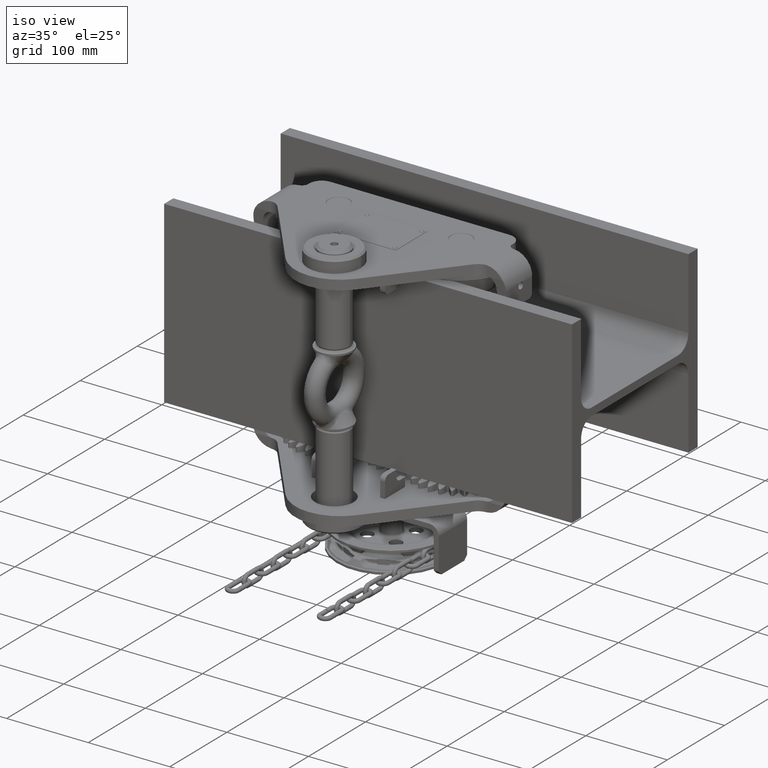
[diagram: clean part render]
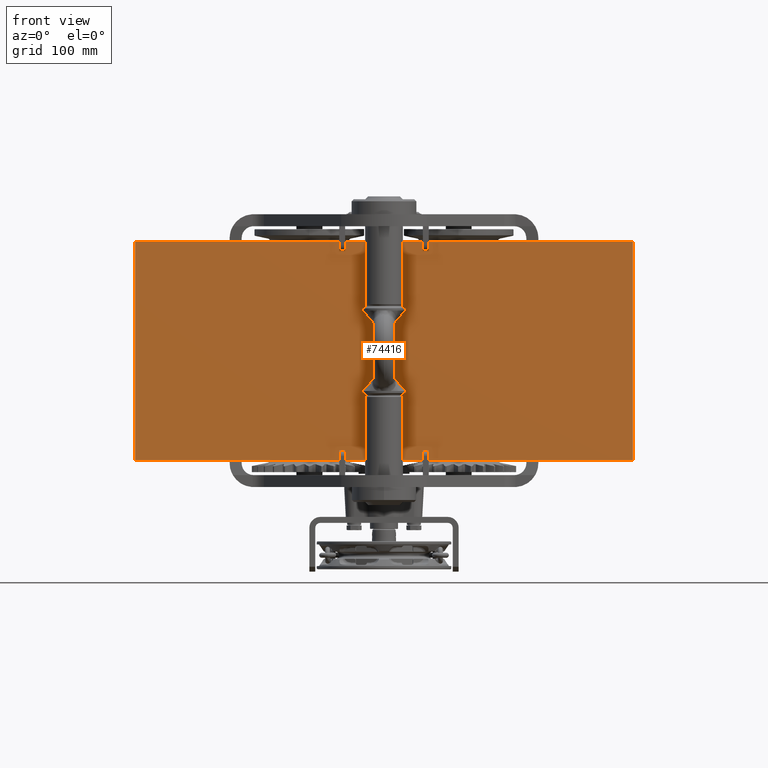
[diagram: tour spotlight — one face highlighted and labeled with its STEP entity id]
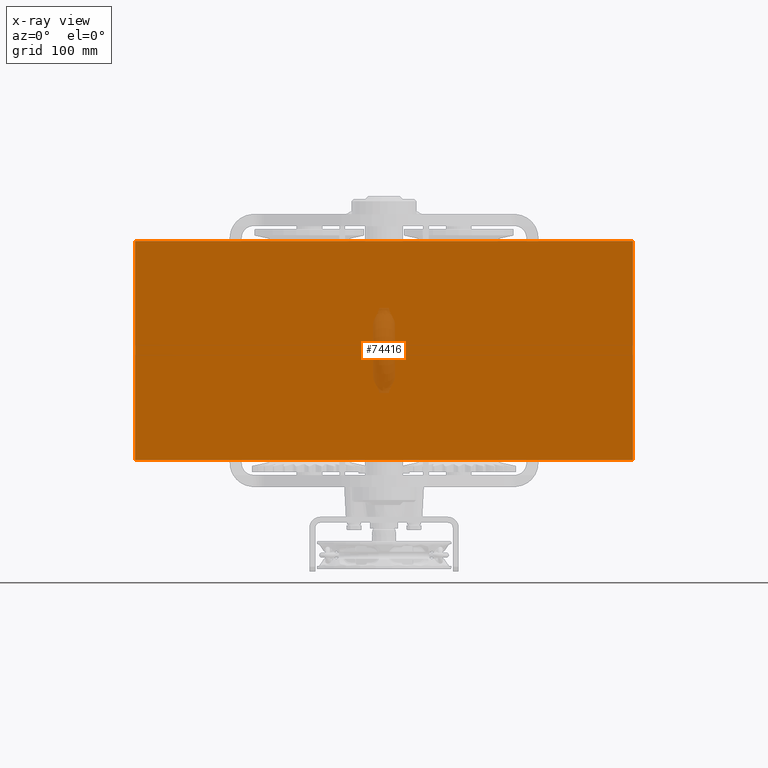
[diagram: x-ray of the same camera — body ghosted, this tour face saturated]
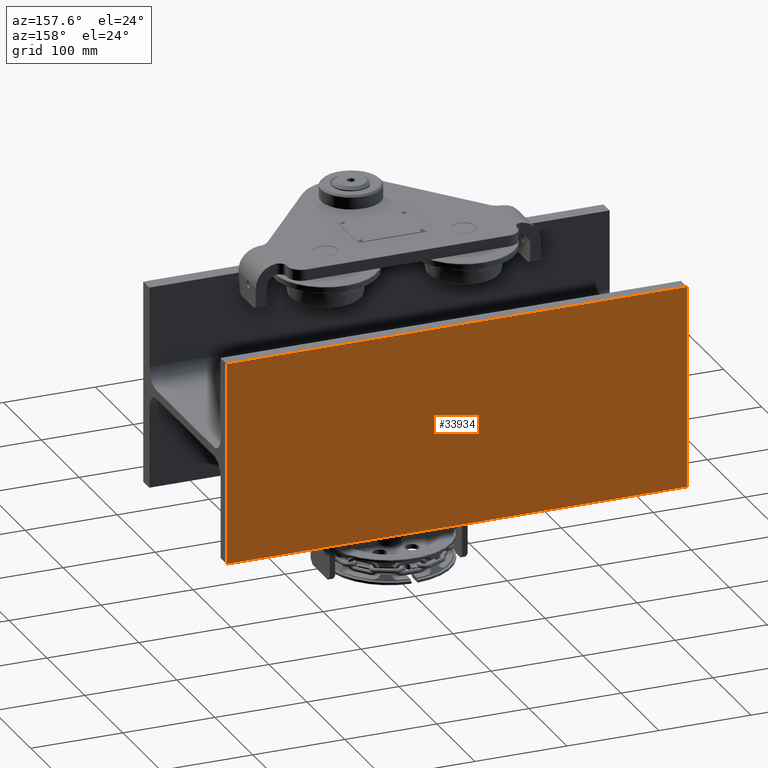
[diagram: tour spotlight — one face highlighted and labeled with its STEP entity id]
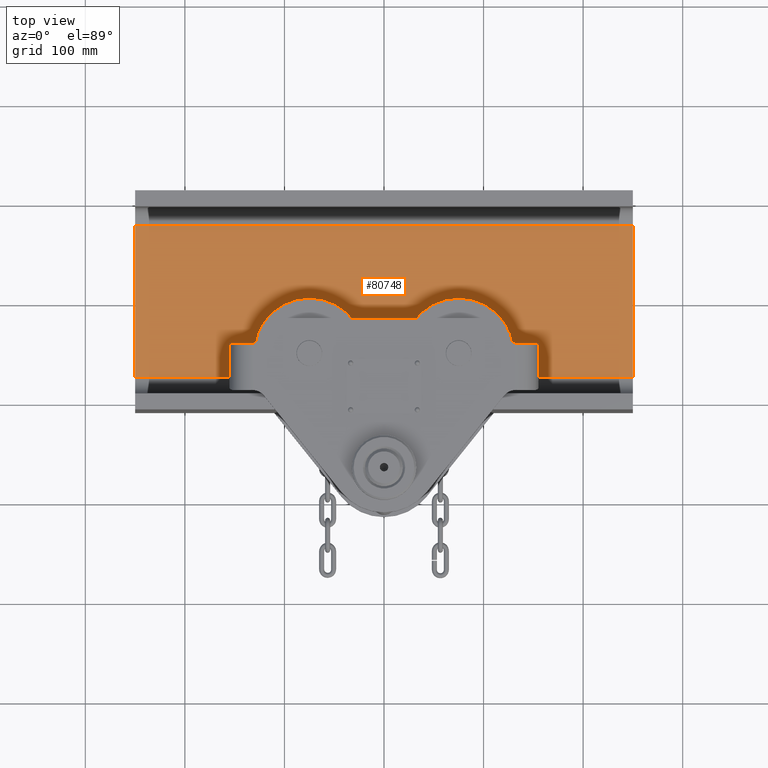
[diagram: tour spotlight — one face highlighted and labeled with its STEP entity id]
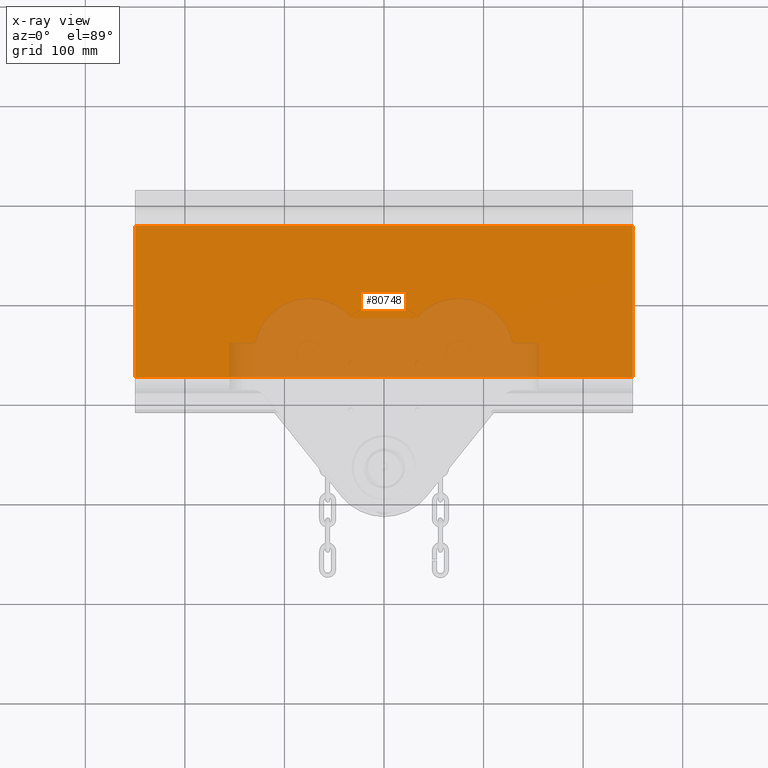
[diagram: x-ray of the same camera — body ghosted, this tour face saturated]
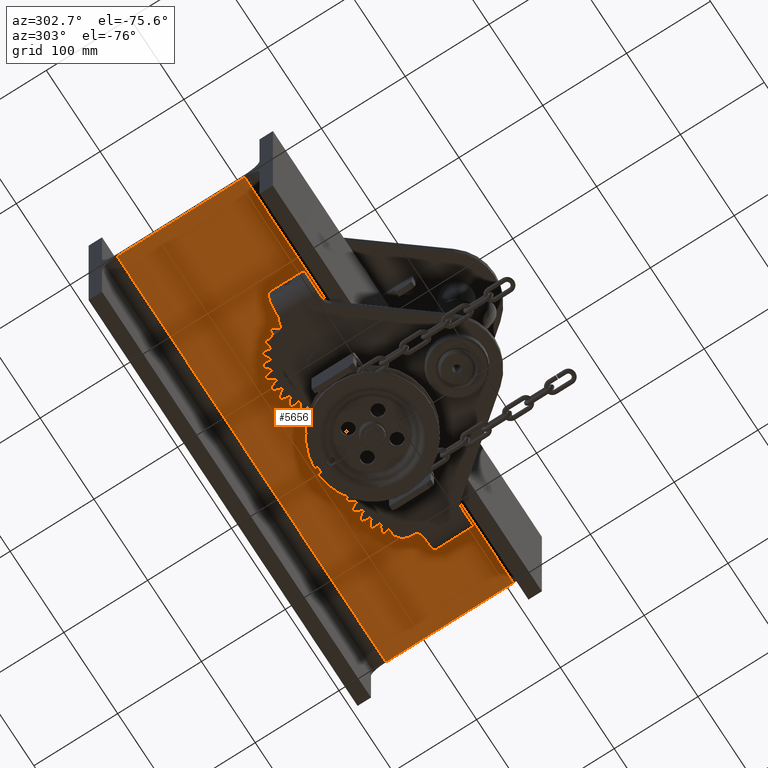
[diagram: tour spotlight — one face highlighted and labeled with its STEP entity id]
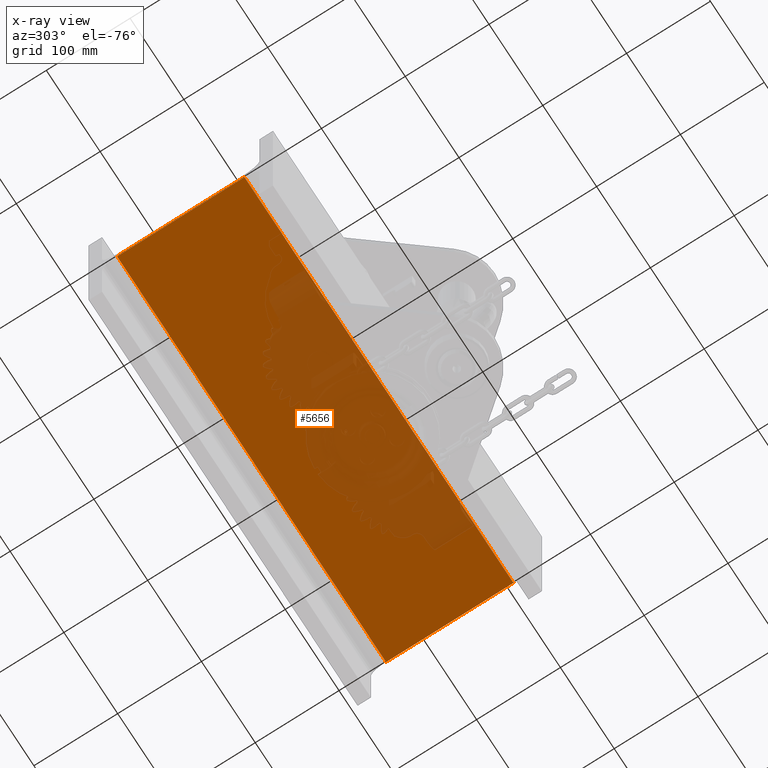
[diagram: x-ray of the same camera — body ghosted, this tour face saturated]
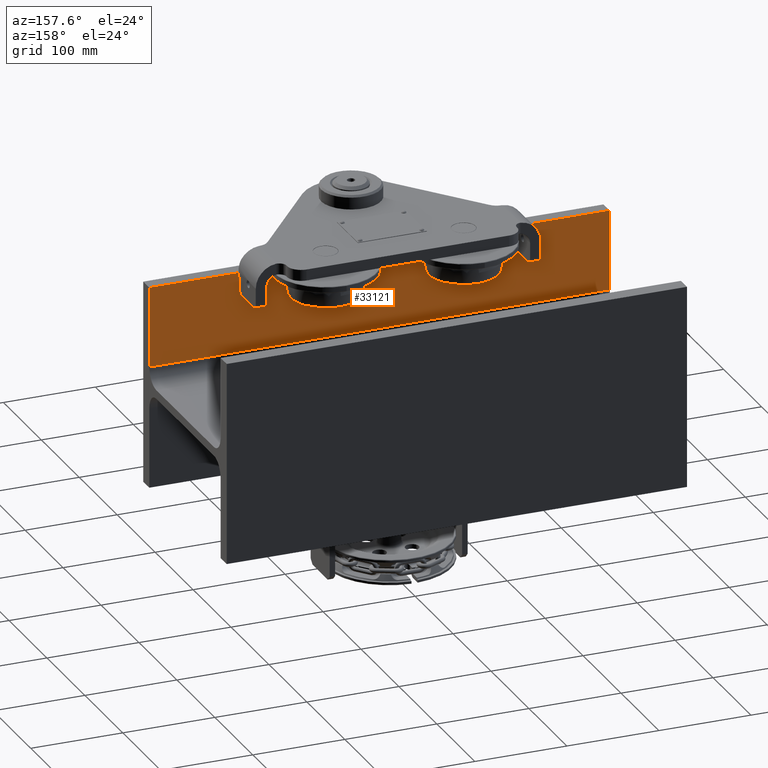
[diagram: tour spotlight — one face highlighted and labeled with its STEP entity id]
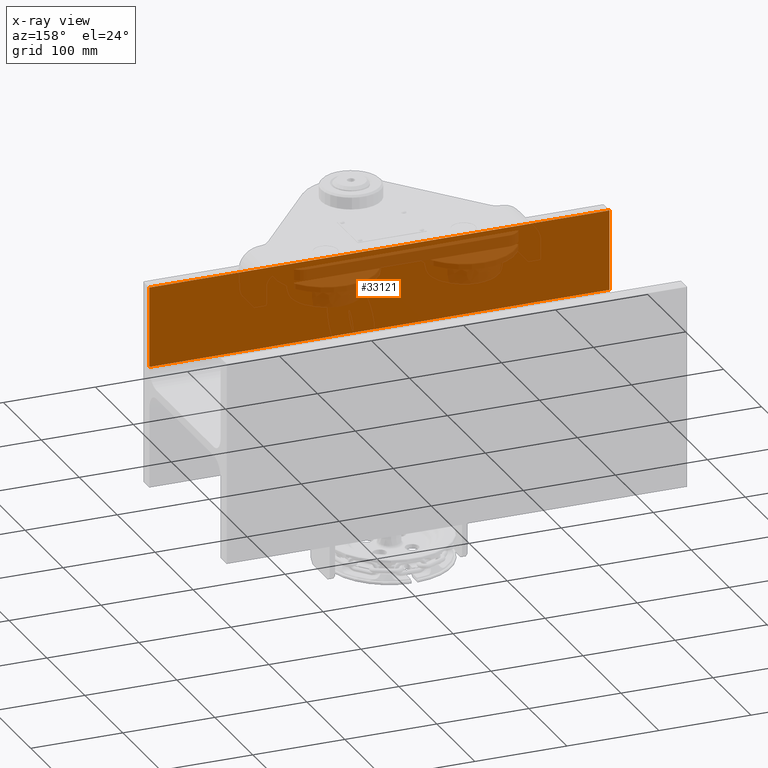
[diagram: x-ray of the same camera — body ghosted, this tour face saturated]
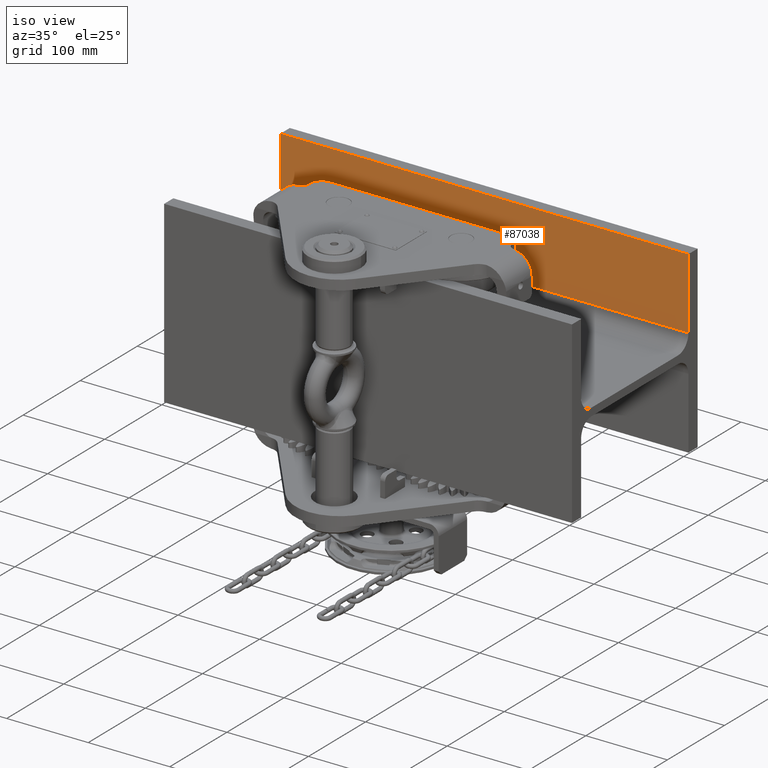
[diagram: tour spotlight — one face highlighted and labeled with its STEP entity id]
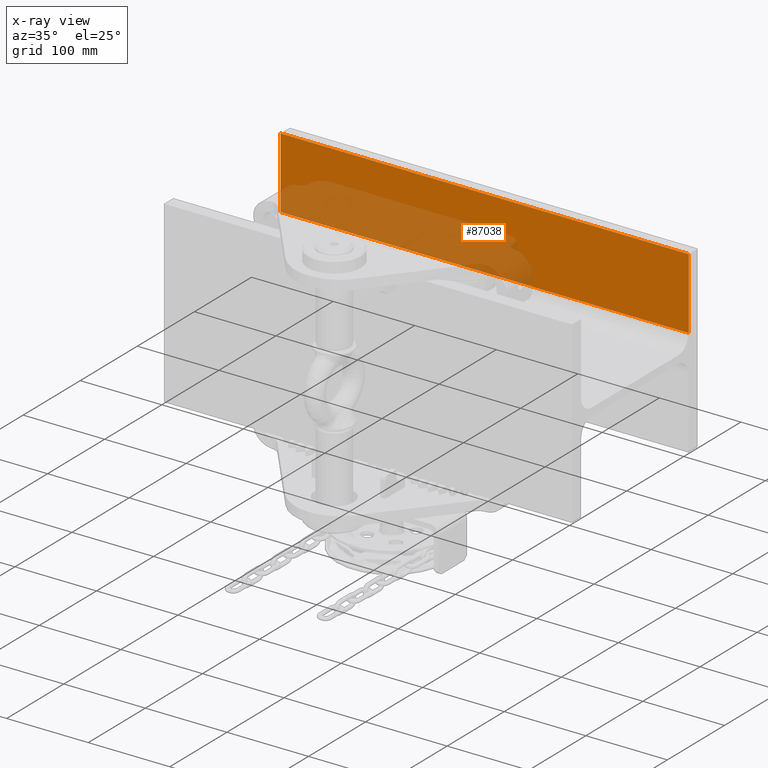
[diagram: x-ray of the same camera — body ghosted, this tour face saturated]
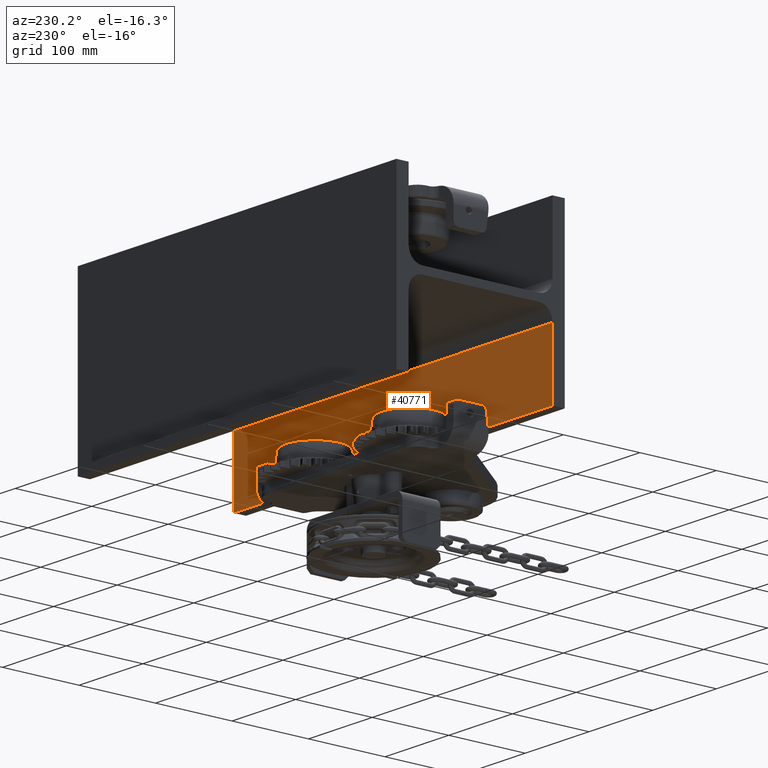
[diagram: tour spotlight — one face highlighted and labeled with its STEP entity id]
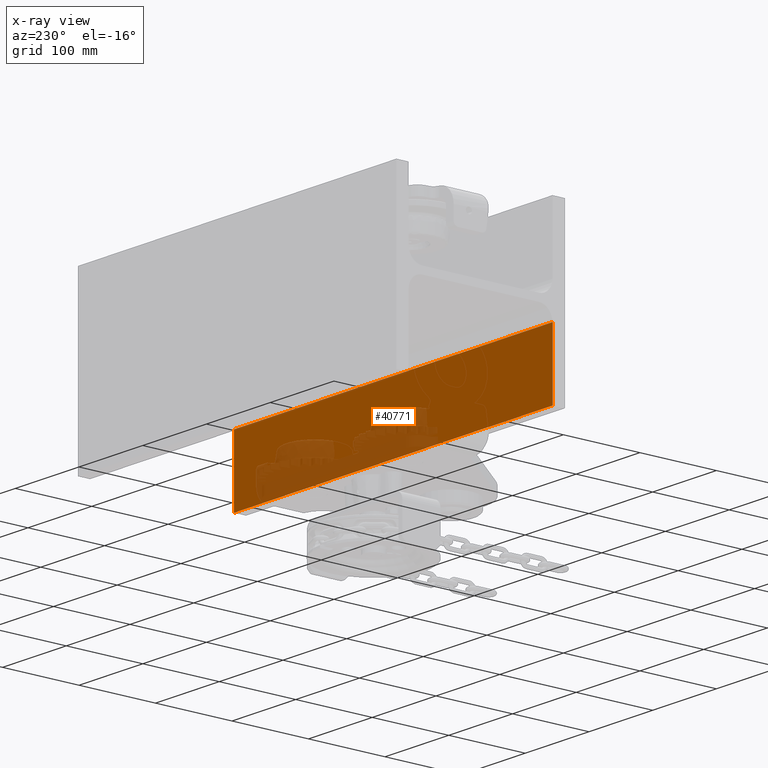
[diagram: x-ray of the same camera — body ghosted, this tour face saturated]
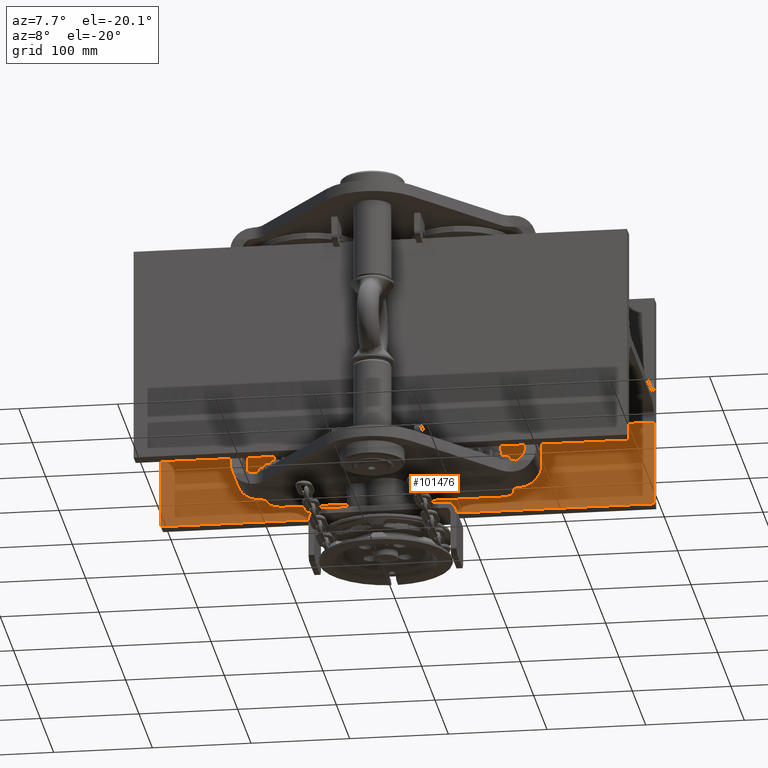
[diagram: tour spotlight — one face highlighted and labeled with its STEP entity id]
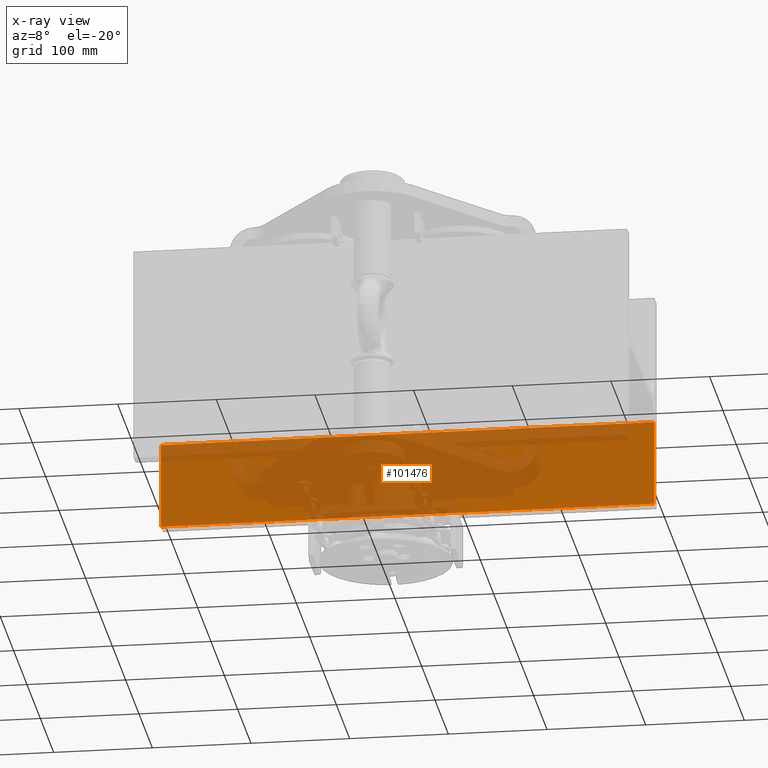
[diagram: x-ray of the same camera — body ghosted, this tour face saturated]
A machine part: a face-by-face anatomy tour. The part has 2111 B-rep faces; the first image is the clean iso view, then the 8 largest visible faces are spotlighted one at a time (largest first), each with its STEP entity span.

Face 1 — front view, entity #74416. An x-ray twin of the same camera follows (body ghosted, this face saturated) — the face is partly hidden behind the body. In plain terms, the highlighted planar face has unit normal (0, -1, -0).
Definition (entity closure, byte-faithful):
#3419 = EDGE_CURVE ( 'NONE', #32816, #4416, #94757, .T. ) ;
#3979 = ORIENTED_EDGE ( 'NONE', *, *, #39376, .F. ) ;
#4416 = VERTEX_POINT ( 'NONE', #8699 ) ;
#5676 = CARTESIAN_POINT ( 'NONE',  ( -250.0000000000000600, -110.0000000000000300, 109.9999999999999300 ) ) ;
#6373 = VECTOR ( 'NONE', #103443, 1000.000000000000000 ) ;
#8208 = VECTOR ( 'NONE', #64261, 1000.000000000000000 ) ;
#8699 = CARTESIAN_POINT ( 'NONE',  ( 250.0000000000000600, -110.0000000000000300, 109.9999999999999300 ) ) ;
#9931 = VECTOR ( 'NONE', #10548, 1000.000000000000000 ) ;
#10548 = DIRECTION ( 'NONE',  ( 1.925929944387235900E-034, 4.554710308673295900E-016, -1.000000000000000000 ) ) ;
#12864 = LINE ( 'NONE', #33943, #31299 ) ;
#13682 = VERTEX_POINT ( 'NONE', #69792 ) ;
#17560 = AXIS2_PLACEMENT_3D ( 'NONE', #86522, #20120, #102956 ) ;
#17988 = ORIENTED_EDGE ( 'NONE', *, *, #84872, .T. ) ;
#20120 = DIRECTION ( 'NONE',  ( 7.945217245539497500E-050, -1.000000000000000000, -4.554710308673295900E-016 ) ) ;
#27888 = ORIENTED_EDGE ( 'NONE', *, *, #104200, .T. ) ;
#28652 = LINE ( 'NONE', #37174, #6373 ) ;
#31299 = VECTOR ( 'NONE', #57488, 1000.000000000000000 ) ;
#32816 = VERTEX_POINT ( 'NONE', #5676 ) ;
#33943 = CARTESIAN_POINT ( 'NONE',  ( -250.0000000000000600, -109.9999999999999300, -110.0000000000000700 ) ) ;
#36612 = CARTESIAN_POINT ( 'NONE',  ( -250.0000000000000600, -110.0000000000000300, 109.9999999999999300 ) ) ;
#37174 = CARTESIAN_POINT ( 'NONE',  ( 250.0000000000000600, -110.0000000000000300, 109.9999999999999300 ) ) ;
#39376 = EDGE_CURVE ( 'NONE', #4416, #13682, #28652, .T. ) ;
#54347 = CARTESIAN_POINT ( 'NONE',  ( -250.0000000000000600, -109.9999999999999300, -110.0000000000000700 ) ) ;
#55752 = CARTESIAN_POINT ( 'NONE',  ( -250.0000000000000600, -110.0000000000000300, 109.9999999999999300 ) ) ;
#57488 = DIRECTION ( 'NONE',  ( 1.000000000000000000, 0.0000000000000000000, 7.703719777548941700E-034 ) ) ;
#64261 = DIRECTION ( 'NONE',  ( 1.000000000000000000, 0.0000000000000000000, 7.703719777548941700E-034 ) ) ;
#69792 = CARTESIAN_POINT ( 'NONE',  ( 250.0000000000000600, -109.9999999999999300, -110.0000000000000700 ) ) ;
#70478 = PLANE ( 'NONE',  #17560 ) ;
#72142 = FACE_OUTER_BOUND ( 'NONE', #102442, .T. ) ;
#73391 = ORIENTED_EDGE ( 'NONE', *, *, #3419, .F. ) ;
#74416 = ADVANCED_FACE ( 'NONE', ( #72142 ), #70478, .T. ) ;
#84872 = EDGE_CURVE ( 'NONE', #87927, #13682, #12864, .T. ) ;
#86522 = CARTESIAN_POINT ( 'NONE',  ( -250.0000000000000600, -110.0000000000000300, 109.9999999999999300 ) ) ;
#87927 = VERTEX_POINT ( 'NONE', #54347 ) ;
#94757 = LINE ( 'NONE', #55752, #8208 ) ;
#100437 = LINE ( 'NONE', #36612, #9931 ) ;
#102442 = EDGE_LOOP ( 'NONE', ( #3979, #73391, #27888, #17988 ) ) ;
#102956 = DIRECTION ( 'NONE',  ( 1.925929944387235900E-034, 4.554710308673295900E-016, -1.000000000000000000 ) ) ;
#103443 = DIRECTION ( 'NONE',  ( 1.925929944387235900E-034, 4.554710308673295900E-016, -1.000000000000000000 ) ) ;
#104200 = EDGE_CURVE ( 'NONE', #32816, #87927, #100437, .T. ) ;

Face 2 — auxiliary view, entity #33934. In plain terms, the highlighted planar face has unit normal (-0, 1, 0).
Definition (entity closure, byte-faithful):
#1237 = LINE ( 'NONE', #79474, #87738 ) ;
#5110 = CARTESIAN_POINT ( 'NONE',  ( -250.0000000000000600, 110.0000000000000400, -110.0000000000000100 ) ) ;
#6190 = LINE ( 'NONE', #29077, #91397 ) ;
#8406 = EDGE_CURVE ( 'NONE', #17644, #76088, #17684, .T. ) ;
#10776 = EDGE_LOOP ( 'NONE', ( #64185, #52254, #77668, #56205 ) ) ;
#11507 = VECTOR ( 'NONE', #40025, 1000.000000000000000 ) ;
#13368 = CARTESIAN_POINT ( 'NONE',  ( 250.0000000000000600, 110.0000000000000400, -110.0000000000000100 ) ) ;
#17644 = VERTEX_POINT ( 'NONE', #13368 ) ;
#17684 = LINE ( 'NONE', #82148, #104229 ) ;
#23062 = DIRECTION ( 'NONE',  ( 1.000000000000000000, 0.0000000000000000000, 7.703719777548941700E-034 ) ) ;
#29077 = CARTESIAN_POINT ( 'NONE',  ( -250.0000000000000600, 110.0000000000000400, 110.0000000000000000 ) ) ;
#31162 = DIRECTION ( 'NONE',  ( -3.307342903774534100E-050, 1.000000000000000000, 4.293176542341493300E-017 ) ) ;
#33934 = ADVANCED_FACE ( 'NONE', ( #45521 ), #96392, .T. ) ;
#40025 = DIRECTION ( 'NONE',  ( -1.925929944387235900E-034, -4.293176542341593100E-017, 1.000000000000000000 ) ) ;
#40639 = EDGE_CURVE ( 'NONE', #88268, #76088, #6190, .T. ) ;
#44855 = DIRECTION ( 'NONE',  ( 1.000000000000000000, 0.0000000000000000000, 7.703719777548941700E-034 ) ) ;
#45521 = FACE_OUTER_BOUND ( 'NONE', #10776, .T. ) ;
#47639 = DIRECTION ( 'NONE',  ( -1.925929944387235900E-034, -4.293176542341593100E-017, 1.000000000000000000 ) ) ;
#51568 = CARTESIAN_POINT ( 'NONE',  ( -250.0000000000000600, 110.0000000000000400, 110.0000000000000000 ) ) ;
#52254 = ORIENTED_EDGE ( 'NONE', *, *, #60131, .F. ) ;
#56112 = CARTESIAN_POINT ( 'NONE',  ( -250.0000000000000600, 110.0000000000000400, -110.0000000000000100 ) ) ;
#56205 = ORIENTED_EDGE ( 'NONE', *, *, #40639, .T. ) ;
#60131 = EDGE_CURVE ( 'NONE', #65452, #17644, #1237, .T. ) ;
#64185 = ORIENTED_EDGE ( 'NONE', *, *, #8406, .F. ) ;
#64527 = CARTESIAN_POINT ( 'NONE',  ( 250.0000000000000600, 110.0000000000000400, 110.0000000000000000 ) ) ;
#65452 = VERTEX_POINT ( 'NONE', #5110 ) ;
#73487 = CARTESIAN_POINT ( 'NONE',  ( -250.0000000000000600, 110.0000000000000400, -110.0000000000000100 ) ) ;
#76088 = VERTEX_POINT ( 'NONE', #64527 ) ;
#77668 = ORIENTED_EDGE ( 'NONE', *, *, #98287, .T. ) ;
#78145 = AXIS2_PLACEMENT_3D ( 'NONE', #56112, #31162, #23062 ) ;
#79474 = CARTESIAN_POINT ( 'NONE',  ( -250.0000000000000600, 110.0000000000000400, -110.0000000000000100 ) ) ;
#82148 = CARTESIAN_POINT ( 'NONE',  ( 250.0000000000000600, 110.0000000000000400, -110.0000000000000100 ) ) ;
#87738 = VECTOR ( 'NONE', #104692, 1000.000000000000000 ) ;
#88268 = VERTEX_POINT ( 'NONE', #51568 ) ;
#91397 = VECTOR ( 'NONE', #44855, 1000.000000000000000 ) ;
#96392 = PLANE ( 'NONE',  #78145 ) ;
#96702 = LINE ( 'NONE', #73487, #11507 ) ;
#98287 = EDGE_CURVE ( 'NONE', #65452, #88268, #96702, .T. ) ;
#104229 = VECTOR ( 'NONE', #47639, 1000.000000000000000 ) ;
#104692 = DIRECTION ( 'NONE',  ( 1.000000000000000000, 0.0000000000000000000, 7.703719777548941700E-034 ) ) ;

Face 3 — top view, entity #80748. An x-ray twin of the same camera follows (body ghosted, this face saturated) — the face is partly hidden behind the body. In plain terms, the highlighted planar face has unit normal (0, 0, -1).
Definition (entity closure, byte-faithful):
#789 = LINE ( 'NONE', #80698, #61194 ) ;
#1568 = EDGE_LOOP ( 'NONE', ( #17333, #53303, #68453, #14514 ) ) ;
#2898 = CARTESIAN_POINT ( 'NONE',  ( -250.0000000000000600, -75.99999999999973000, 4.749999999999992000 ) ) ;
#2938 = FACE_OUTER_BOUND ( 'NONE', #1568, .T. ) ;
#3963 = DIRECTION ( 'NONE',  ( 1.000000000000000000, 0.0000000000000000000, 7.703719777548941700E-034 ) ) ;
#4971 = VERTEX_POINT ( 'NONE', #70269 ) ;
#14514 = ORIENTED_EDGE ( 'NONE', *, *, #43515, .T. ) ;
#15247 = DIRECTION ( 'NONE',  ( 7.703719777548941700E-034, 4.293176542341593700E-017, -1.000000000000000000 ) ) ;
#15536 = LINE ( 'NONE', #2898, #24780 ) ;
#16505 = EDGE_CURVE ( 'NONE', #4971, #70873, #789, .T. ) ;
#17333 = ORIENTED_EDGE ( 'NONE', *, *, #16505, .T. ) ;
#22223 = PLANE ( 'NONE',  #76743 ) ;
#24780 = VECTOR ( 'NONE', #3963, 1000.000000000000000 ) ;
#27317 = CARTESIAN_POINT ( 'NONE',  ( -250.0000000000000600, -75.99999999999973000, 4.749999999999975100 ) ) ;
#27570 = VECTOR ( 'NONE', #74344, 1000.000000000000000 ) ;
#35378 = EDGE_CURVE ( 'NONE', #65437, #70873, #56444, .T. ) ;
#39254 = DIRECTION ( 'NONE',  ( 0.0000000000000000000, 1.000000000000000000, 4.293176542341493300E-017 ) ) ;
#41239 = CARTESIAN_POINT ( 'NONE',  ( -250.0000000000000600, 75.99999999999992900, 4.749999999999980500 ) ) ;
#43515 = EDGE_CURVE ( 'NONE', #47746, #4971, #15536, .T. ) ;
#47746 = VERTEX_POINT ( 'NONE', #75892 ) ;
#53303 = ORIENTED_EDGE ( 'NONE', *, *, #35378, .F. ) ;
#56444 = LINE ( 'NONE', #41239, #27570 ) ;
#61194 = VECTOR ( 'NONE', #39254, 1000.000000000000000 ) ;
#65437 = VERTEX_POINT ( 'NONE', #99256 ) ;
#68453 = ORIENTED_EDGE ( 'NONE', *, *, #83078, .F. ) ;
#70269 = CARTESIAN_POINT ( 'NONE',  ( 250.0000000000000600, -75.99999999999973000, 4.749999999999992000 ) ) ;
#70873 = VERTEX_POINT ( 'NONE', #103136 ) ;
#73313 = CARTESIAN_POINT ( 'NONE',  ( -250.0000000000000600, -75.99999999999973000, 4.749999999999975100 ) ) ;
#74344 = DIRECTION ( 'NONE',  ( 1.000000000000000000, 0.0000000000000000000, 7.703719777548941700E-034 ) ) ;
#75892 = CARTESIAN_POINT ( 'NONE',  ( -250.0000000000000600, -75.99999999999973000, 4.749999999999992000 ) ) ;
#76743 = AXIS2_PLACEMENT_3D ( 'NONE', #73313, #15247, #82039 ) ;
#80698 = CARTESIAN_POINT ( 'NONE',  ( 250.0000000000000600, -75.99999999999973000, 4.749999999999975100 ) ) ;
#80748 = ADVANCED_FACE ( 'NONE', ( #2938 ), #22223, .F. ) ;
#82039 = DIRECTION ( 'NONE',  ( -1.000000000000000000, 0.0000000000000000000, -7.703719777548941700E-034 ) ) ;
#83078 = EDGE_CURVE ( 'NONE', #47746, #65437, #103952, .T. ) ;
#89582 = VECTOR ( 'NONE', #94024, 1000.000000000000000 ) ;
#94024 = DIRECTION ( 'NONE',  ( 0.0000000000000000000, 1.000000000000000000, 4.293176542341493300E-017 ) ) ;
#99256 = CARTESIAN_POINT ( 'NONE',  ( -250.0000000000000600, 75.99999999999992900, 4.749999999999980500 ) ) ;
#103136 = CARTESIAN_POINT ( 'NONE',  ( 250.0000000000000600, 75.99999999999992900, 4.749999999999980500 ) ) ;
#103952 = LINE ( 'NONE', #27317, #89582 ) ;

Face 4 — auxiliary view, entity #5656. An x-ray twin of the same camera follows (body ghosted, this face saturated) — the face is partly hidden behind the body. In plain terms, the highlighted planar face has unit normal (0, 0, -1).
Definition (entity closure, byte-faithful):
#511 = CARTESIAN_POINT ( 'NONE',  ( -250.0000000000000600, -75.99999999999995700, -4.750000000000026600 ) ) ;
#2541 = DIRECTION ( 'NONE',  ( 0.0000000000000000000, 1.000000000000000000, 4.293176542341493300E-017 ) ) ;
#5656 = ADVANCED_FACE ( 'NONE', ( #63509 ), #24900, .T. ) ;
#8846 = DIRECTION ( 'NONE',  ( 1.000000000000000000, 0.0000000000000000000, 7.703719777548941700E-034 ) ) ;
#11488 = CARTESIAN_POINT ( 'NONE',  ( -250.0000000000000600, -75.99999999999995700, -4.750000000000026600 ) ) ;
#12006 = VECTOR ( 'NONE', #8846, 1000.000000000000000 ) ;
#13341 = VERTEX_POINT ( 'NONE', #11488 ) ;
#13652 = EDGE_CURVE ( 'NONE', #13341, #22830, #59327, .T. ) ;
#13727 = CARTESIAN_POINT ( 'NONE',  ( -250.0000000000000600, 75.99999999999995700, -4.750000000000007100 ) ) ;
#15067 = CARTESIAN_POINT ( 'NONE',  ( 250.0000000000000600, -75.99999999999995700, -4.750000000000026600 ) ) ;
#15446 = DIRECTION ( 'NONE',  ( 0.0000000000000000000, 1.000000000000000000, 4.293176542341493300E-017 ) ) ;
#22787 = CARTESIAN_POINT ( 'NONE',  ( 250.0000000000000600, -75.99999999999995700, -4.750000000000026600 ) ) ;
#22830 = VERTEX_POINT ( 'NONE', #15067 ) ;
#24900 = PLANE ( 'NONE',  #79604 ) ;
#27706 = LINE ( 'NONE', #44653, #47344 ) ;
#28836 = CARTESIAN_POINT ( 'NONE',  ( 250.0000000000000600, 75.99999999999995700, -4.750000000000007100 ) ) ;
#30133 = EDGE_LOOP ( 'NONE', ( #33224, #38405, #96017, #102232 ) ) ;
#33015 = DIRECTION ( 'NONE',  ( 7.703719777548941700E-034, 4.293176542341593700E-017, -1.000000000000000000 ) ) ;
#33224 = ORIENTED_EDGE ( 'NONE', *, *, #38581, .F. ) ;
#38405 = ORIENTED_EDGE ( 'NONE', *, *, #13652, .F. ) ;
#38440 = EDGE_CURVE ( 'NONE', #13341, #42153, #27706, .T. ) ;
#38581 = EDGE_CURVE ( 'NONE', #22830, #94065, #41996, .T. ) ;
#41996 = LINE ( 'NONE', #22787, #104983 ) ;
#42153 = VERTEX_POINT ( 'NONE', #43123 ) ;
#43123 = CARTESIAN_POINT ( 'NONE',  ( -250.0000000000000600, 75.99999999999995700, -4.750000000000007100 ) ) ;
#44653 = CARTESIAN_POINT ( 'NONE',  ( -250.0000000000000600, -75.99999999999995700, -4.750000000000026600 ) ) ;
#47344 = VECTOR ( 'NONE', #2541, 1000.000000000000000 ) ;
#57992 = DIRECTION ( 'NONE',  ( -1.000000000000000000, 0.0000000000000000000, -7.703719777548941700E-034 ) ) ;
#58703 = CARTESIAN_POINT ( 'NONE',  ( -250.0000000000000600, -75.99999999999995700, -4.750000000000026600 ) ) ;
#59327 = LINE ( 'NONE', #511, #12006 ) ;
#63509 = FACE_OUTER_BOUND ( 'NONE', #30133, .T. ) ;
#67054 = VECTOR ( 'NONE', #73577, 1000.000000000000000 ) ;
#73577 = DIRECTION ( 'NONE',  ( 1.000000000000000000, 0.0000000000000000000, 7.703719777548941700E-034 ) ) ;
#79604 = AXIS2_PLACEMENT_3D ( 'NONE', #58703, #33015, #57992 ) ;
#94065 = VERTEX_POINT ( 'NONE', #28836 ) ;
#96017 = ORIENTED_EDGE ( 'NONE', *, *, #38440, .T. ) ;
#97722 = EDGE_CURVE ( 'NONE', #42153, #94065, #104891, .T. ) ;
#102232 = ORIENTED_EDGE ( 'NONE', *, *, #97722, .T. ) ;
#104891 = LINE ( 'NONE', #13727, #67054 ) ;
#104983 = VECTOR ( 'NONE', #15446, 1000.000000000000000 ) ;

Face 5 — auxiliary view, entity #33121. An x-ray twin of the same camera follows (body ghosted, this face saturated) — the face is partly hidden behind the body. In plain terms, the highlighted planar face has unit normal (0, -1, -0).
Definition (entity closure, byte-faithful):
#1490 = VECTOR ( 'NONE', #102045, 1000.000000000000000 ) ;
#2682 = CARTESIAN_POINT ( 'NONE',  ( -250.0000000000000600, -93.99999999999997200, 109.9999999999999400 ) ) ;
#3755 = EDGE_CURVE ( 'NONE', #4051, #70382, #60513, .T. ) ;
#4051 = VERTEX_POINT ( 'NONE', #23201 ) ;
#10451 = VERTEX_POINT ( 'NONE', #45384 ) ;
#16706 = CARTESIAN_POINT ( 'NONE',  ( -250.0000000000000600, -93.99999999999997200, 109.9999999999999400 ) ) ;
#17965 = EDGE_CURVE ( 'NONE', #80266, #70382, #49828, .T. ) ;
#18415 = DIRECTION ( 'NONE',  ( 1.925929944387235900E-034, 2.667384474064545400E-015, -1.000000000000000000 ) ) ;
#20645 = EDGE_CURVE ( 'NONE', #10451, #80266, #58039, .T. ) ;
#23201 = CARTESIAN_POINT ( 'NONE',  ( -250.0000000000000600, -93.99999999999973000, 22.74999999999994000 ) ) ;
#25142 = DIRECTION ( 'NONE',  ( 1.925929944387235900E-034, 2.667384474064545400E-015, -1.000000000000000000 ) ) ;
#27640 = ORIENTED_EDGE ( 'NONE', *, *, #20645, .T. ) ;
#30080 = ORIENTED_EDGE ( 'NONE', *, *, #102258, .F. ) ;
#30104 = FACE_OUTER_BOUND ( 'NONE', #34607, .T. ) ;
#33121 = ADVANCED_FACE ( 'NONE', ( #30104 ), #76428, .F. ) ;
#34607 = EDGE_LOOP ( 'NONE', ( #80912, #35417, #30080, #27640 ) ) ;
#35417 = ORIENTED_EDGE ( 'NONE', *, *, #3755, .F. ) ;
#35729 = VECTOR ( 'NONE', #59340, 1000.000000000000000 ) ;
#36043 = DIRECTION ( 'NONE',  ( 1.925929944387235900E-034, 2.667384474064545400E-015, -1.000000000000000000 ) ) ;
#39539 = VECTOR ( 'NONE', #25142, 1000.000000000000000 ) ;
#45384 = CARTESIAN_POINT ( 'NONE',  ( -250.0000000000000600, -93.99999999999997200, 109.9999999999999400 ) ) ;
#45897 = DIRECTION ( 'NONE',  ( 5.054512059200142900E-049, -1.000000000000000000, -2.667384474064545400E-015 ) ) ;
#46149 = CARTESIAN_POINT ( 'NONE',  ( 250.0000000000000600, -93.99999999999973000, 22.74999999999994000 ) ) ;
#49828 = LINE ( 'NONE', #51387, #82715 ) ;
#51387 = CARTESIAN_POINT ( 'NONE',  ( 250.0000000000000600, -93.99999999999997200, 109.9999999999999400 ) ) ;
#58039 = LINE ( 'NONE', #67067, #35729 ) ;
#58395 = AXIS2_PLACEMENT_3D ( 'NONE', #2682, #45897, #36043 ) ;
#59340 = DIRECTION ( 'NONE',  ( 1.000000000000000000, 0.0000000000000000000, 7.703719777548941700E-034 ) ) ;
#60513 = LINE ( 'NONE', #102418, #1490 ) ;
#67067 = CARTESIAN_POINT ( 'NONE',  ( -250.0000000000000600, -93.99999999999997200, 109.9999999999999400 ) ) ;
#70382 = VERTEX_POINT ( 'NONE', #46149 ) ;
#76428 = PLANE ( 'NONE',  #58395 ) ;
#80266 = VERTEX_POINT ( 'NONE', #87951 ) ;
#80912 = ORIENTED_EDGE ( 'NONE', *, *, #17965, .T. ) ;
#82715 = VECTOR ( 'NONE', #18415, 1000.000000000000000 ) ;
#87951 = CARTESIAN_POINT ( 'NONE',  ( 250.0000000000000600, -93.99999999999997200, 109.9999999999999400 ) ) ;
#94605 = LINE ( 'NONE', #16706, #39539 ) ;
#102045 = DIRECTION ( 'NONE',  ( 1.000000000000000000, 0.0000000000000000000, 7.703719777548941700E-034 ) ) ;
#102258 = EDGE_CURVE ( 'NONE', #10451, #4051, #94605, .T. ) ;
#102418 = CARTESIAN_POINT ( 'NONE',  ( -250.0000000000000600, -93.99999999999973000, 22.74999999999994000 ) ) ;

Face 6 — iso view, entity #87038. An x-ray twin of the same camera follows (body ghosted, this face saturated) — the face is partly hidden behind the body. In plain terms, the highlighted planar face has unit normal (-0, 1, 0).
Definition (entity closure, byte-faithful):
#3341 = LINE ( 'NONE', #107226, #42657 ) ;
#3803 = CARTESIAN_POINT ( 'NONE',  ( 250.0000000000000600, 93.99999999999997200, 22.75000000000001800 ) ) ;
#6154 = DIRECTION ( 'NONE',  ( -1.925929944387235900E-034, -3.610472452587044400E-016, 1.000000000000000000 ) ) ;
#10583 = CARTESIAN_POINT ( 'NONE',  ( 250.0000000000000600, 93.99999999999994300, 110.0000000000000000 ) ) ;
#11727 = CARTESIAN_POINT ( 'NONE',  ( -250.0000000000000600, 93.99999999999994300, 110.0000000000000000 ) ) ;
#18148 = LINE ( 'NONE', #3803, #65502 ) ;
#18688 = VECTOR ( 'NONE', #6154, 1000.000000000000000 ) ;
#20921 = ORIENTED_EDGE ( 'NONE', *, *, #42880, .F. ) ;
#25098 = LINE ( 'NONE', #32318, #48657 ) ;
#25539 = VERTEX_POINT ( 'NONE', #11727 ) ;
#29156 = AXIS2_PLACEMENT_3D ( 'NONE', #71892, #29974, #88979 ) ;
#29974 = DIRECTION ( 'NONE',  ( -6.126681283878979500E-050, 1.000000000000000000, 3.610472452587044400E-016 ) ) ;
#30385 = CARTESIAN_POINT ( 'NONE',  ( -250.0000000000000600, 93.99999999999997200, 22.75000000000001800 ) ) ;
#32273 = ORIENTED_EDGE ( 'NONE', *, *, #104415, .T. ) ;
#32318 = CARTESIAN_POINT ( 'NONE',  ( -250.0000000000000600, 93.99999999999994300, 110.0000000000000000 ) ) ;
#42657 = VECTOR ( 'NONE', #48216, 1000.000000000000000 ) ;
#42880 = EDGE_CURVE ( 'NONE', #25539, #82638, #25098, .T. ) ;
#44349 = VERTEX_POINT ( 'NONE', #52315 ) ;
#48216 = DIRECTION ( 'NONE',  ( 1.000000000000000000, 0.0000000000000000000, 7.703719777548941700E-034 ) ) ;
#48657 = VECTOR ( 'NONE', #66497, 1000.000000000000000 ) ;
#49465 = EDGE_CURVE ( 'NONE', #77893, #82638, #18148, .T. ) ;
#52315 = CARTESIAN_POINT ( 'NONE',  ( -250.0000000000000600, 93.99999999999997200, 22.75000000000001800 ) ) ;
#65502 = VECTOR ( 'NONE', #70245, 1000.000000000000000 ) ;
#66497 = DIRECTION ( 'NONE',  ( 1.000000000000000000, 0.0000000000000000000, 7.703719777548941700E-034 ) ) ;
#70245 = DIRECTION ( 'NONE',  ( -1.925929944387235900E-034, -3.610472452587044400E-016, 1.000000000000000000 ) ) ;
#71892 = CARTESIAN_POINT ( 'NONE',  ( -250.0000000000000600, 93.99999999999997200, 22.75000000000001800 ) ) ;
#73234 = EDGE_CURVE ( 'NONE', #44349, #25539, #94721, .T. ) ;
#73910 = ORIENTED_EDGE ( 'NONE', *, *, #73234, .F. ) ;
#75029 = EDGE_LOOP ( 'NONE', ( #104269, #20921, #73910, #32273 ) ) ;
#77893 = VERTEX_POINT ( 'NONE', #80013 ) ;
#80013 = CARTESIAN_POINT ( 'NONE',  ( 250.0000000000000600, 93.99999999999997200, 22.75000000000001800 ) ) ;
#82638 = VERTEX_POINT ( 'NONE', #10583 ) ;
#87038 = ADVANCED_FACE ( 'NONE', ( #107718 ), #102540, .F. ) ;
#88979 = DIRECTION ( 'NONE',  ( -1.925929944387235900E-034, -3.610472452587044400E-016, 1.000000000000000000 ) ) ;
#94721 = LINE ( 'NONE', #30385, #18688 ) ;
#102540 = PLANE ( 'NONE',  #29156 ) ;
#104269 = ORIENTED_EDGE ( 'NONE', *, *, #49465, .T. ) ;
#104415 = EDGE_CURVE ( 'NONE', #44349, #77893, #3341, .T. ) ;
#107226 = CARTESIAN_POINT ( 'NONE',  ( -250.0000000000000600, 93.99999999999997200, 22.75000000000001800 ) ) ;
#107718 = FACE_OUTER_BOUND ( 'NONE', #75029, .T. ) ;

Face 7 — auxiliary view, entity #40771. An x-ray twin of the same camera follows (body ghosted, this face saturated) — the face is partly hidden behind the body. In plain terms, the highlighted planar face has unit normal (-0, 1, 0).
Definition (entity closure, byte-faithful):
#2993 = CARTESIAN_POINT ( 'NONE',  ( -250.0000000000000600, -93.99999999999992900, -110.0000000000000900 ) ) ;
#4837 = VECTOR ( 'NONE', #56678, 1000.000000000000000 ) ;
#4866 = EDGE_CURVE ( 'NONE', #53694, #70218, #104479, .T. ) ;
#12550 = CARTESIAN_POINT ( 'NONE',  ( 250.0000000000000600, -93.99999999999992900, -110.0000000000000900 ) ) ;
#20714 = CARTESIAN_POINT ( 'NONE',  ( -250.0000000000000600, -93.99999999999992900, -110.0000000000000900 ) ) ;
#23025 = VERTEX_POINT ( 'NONE', #2993 ) ;
#23222 = FACE_OUTER_BOUND ( 'NONE', #105734, .T. ) ;
#26616 = VECTOR ( 'NONE', #78409, 1000.000000000000000 ) ;
#28110 = VERTEX_POINT ( 'NONE', #100967 ) ;
#38724 = DIRECTION ( 'NONE',  ( -1.925929944387235900E-034, -1.622250703616490400E-016, 1.000000000000000000 ) ) ;
#39339 = PLANE ( 'NONE',  #63721 ) ;
#40771 = ADVANCED_FACE ( 'NONE', ( #23222 ), #39339, .T. ) ;
#44406 = LINE ( 'NONE', #46004, #89008 ) ;
#45609 = EDGE_CURVE ( 'NONE', #28110, #70218, #66070, .T. ) ;
#46004 = CARTESIAN_POINT ( 'NONE',  ( -250.0000000000000600, -93.99999999999992900, -110.0000000000000900 ) ) ;
#46318 = DIRECTION ( 'NONE',  ( -2.297505481454627600E-050, 1.000000000000000000, 1.622250703616490400E-016 ) ) ;
#53694 = VERTEX_POINT ( 'NONE', #12550 ) ;
#54362 = DIRECTION ( 'NONE',  ( -1.925929944387235900E-034, -1.622250703616490400E-016, 1.000000000000000000 ) ) ;
#56678 = DIRECTION ( 'NONE',  ( -1.925929944387235900E-034, -1.622250703616490400E-016, 1.000000000000000000 ) ) ;
#63297 = DIRECTION ( 'NONE',  ( 1.000000000000000000, 0.0000000000000000000, 7.703719777548941700E-034 ) ) ;
#63721 = AXIS2_PLACEMENT_3D ( 'NONE', #80061, #46318, #54362 ) ;
#65177 = CARTESIAN_POINT ( 'NONE',  ( 250.0000000000000600, -93.99999999999992900, -110.0000000000000900 ) ) ;
#66070 = LINE ( 'NONE', #79476, #26616 ) ;
#69188 = ORIENTED_EDGE ( 'NONE', *, *, #45609, .T. ) ;
#70218 = VERTEX_POINT ( 'NONE', #86491 ) ;
#78409 = DIRECTION ( 'NONE',  ( 1.000000000000000000, 0.0000000000000000000, 7.703719777548941700E-034 ) ) ;
#78881 = EDGE_CURVE ( 'NONE', #23025, #53694, #44406, .T. ) ;
#78902 = VECTOR ( 'NONE', #38724, 1000.000000000000000 ) ;
#79476 = CARTESIAN_POINT ( 'NONE',  ( -250.0000000000000600, -93.99999999999994300, -22.75000000000003600 ) ) ;
#80061 = CARTESIAN_POINT ( 'NONE',  ( -250.0000000000000600, -93.99999999999992900, -110.0000000000000900 ) ) ;
#81706 = ORIENTED_EDGE ( 'NONE', *, *, #84051, .T. ) ;
#83126 = ORIENTED_EDGE ( 'NONE', *, *, #4866, .F. ) ;
#84051 = EDGE_CURVE ( 'NONE', #23025, #28110, #85443, .T. ) ;
#85443 = LINE ( 'NONE', #20714, #78902 ) ;
#86491 = CARTESIAN_POINT ( 'NONE',  ( 250.0000000000000600, -93.99999999999994300, -22.75000000000003600 ) ) ;
#89008 = VECTOR ( 'NONE', #63297, 1000.000000000000000 ) ;
#100937 = ORIENTED_EDGE ( 'NONE', *, *, #78881, .F. ) ;
#100967 = CARTESIAN_POINT ( 'NONE',  ( -250.0000000000000600, -93.99999999999994300, -22.75000000000003600 ) ) ;
#104479 = LINE ( 'NONE', #65177, #4837 ) ;
#105734 = EDGE_LOOP ( 'NONE', ( #83126, #100937, #81706, #69188 ) ) ;

Face 8 — auxiliary view, entity #101476. An x-ray twin of the same camera follows (body ghosted, this face saturated) — the face is partly hidden behind the body. In plain terms, the highlighted planar face has unit normal (0, -1, -0).
Definition (entity closure, byte-faithful):
#801 = VECTOR ( 'NONE', #58855, 1000.000000000000000 ) ;
#1692 = EDGE_CURVE ( 'NONE', #18609, #74782, #4271, .T. ) ;
#3269 = CARTESIAN_POINT ( 'NONE',  ( -250.0000000000000600, 93.99999999999997200, -22.74999999999997500 ) ) ;
#4271 = LINE ( 'NONE', #3269, #96030 ) ;
#6623 = DIRECTION ( 'NONE',  ( 1.225336256775793600E-049, -1.000000000000000000, -6.791627250939927600E-016 ) ) ;
#11153 = ORIENTED_EDGE ( 'NONE', *, *, #40979, .T. ) ;
#11655 = ORIENTED_EDGE ( 'NONE', *, *, #80809, .T. ) ;
#12019 = DIRECTION ( 'NONE',  ( 1.925929944387235900E-034, 6.791627250939927600E-016, -1.000000000000000000 ) ) ;
#18609 = VERTEX_POINT ( 'NONE', #104578 ) ;
#22590 = DIRECTION ( 'NONE',  ( 1.000000000000000000, 0.0000000000000000000, 7.703719777548941700E-034 ) ) ;
#32615 = EDGE_LOOP ( 'NONE', ( #86168, #45966, #11153, #11655 ) ) ;
#34254 = VECTOR ( 'NONE', #22590, 1000.000000000000000 ) ;
#35918 = CARTESIAN_POINT ( 'NONE',  ( 250.0000000000000600, 93.99999999999997200, -22.74999999999997500 ) ) ;
#39842 = AXIS2_PLACEMENT_3D ( 'NONE', #73459, #6623, #98593 ) ;
#40979 = EDGE_CURVE ( 'NONE', #18609, #75699, #67718, .T. ) ;
#41932 = CARTESIAN_POINT ( 'NONE',  ( -250.0000000000000600, 93.99999999999997200, -22.74999999999997500 ) ) ;
#45966 = ORIENTED_EDGE ( 'NONE', *, *, #1692, .F. ) ;
#49235 = CARTESIAN_POINT ( 'NONE',  ( -250.0000000000000600, 94.00000000000002800, -109.9999999999999900 ) ) ;
#51476 = VECTOR ( 'NONE', #12019, 1000.000000000000000 ) ;
#55784 = PLANE ( 'NONE',  #39842 ) ;
#58855 = DIRECTION ( 'NONE',  ( 1.925929944387235900E-034, 6.791627250939927600E-016, -1.000000000000000000 ) ) ;
#64251 = VERTEX_POINT ( 'NONE', #107415 ) ;
#64501 = CARTESIAN_POINT ( 'NONE',  ( -250.0000000000000600, 94.00000000000002800, -109.9999999999999900 ) ) ;
#67718 = LINE ( 'NONE', #41932, #801 ) ;
#68666 = LINE ( 'NONE', #35918, #51476 ) ;
#73459 = CARTESIAN_POINT ( 'NONE',  ( -250.0000000000000600, 93.99999999999997200, -22.74999999999997500 ) ) ;
#74782 = VERTEX_POINT ( 'NONE', #100296 ) ;
#75699 = VERTEX_POINT ( 'NONE', #49235 ) ;
#77653 = LINE ( 'NONE', #64501, #34254 ) ;
#78434 = DIRECTION ( 'NONE',  ( 1.000000000000000000, 0.0000000000000000000, 7.703719777548941700E-034 ) ) ;
#80809 = EDGE_CURVE ( 'NONE', #75699, #64251, #77653, .T. ) ;
#86168 = ORIENTED_EDGE ( 'NONE', *, *, #101832, .F. ) ;
#96030 = VECTOR ( 'NONE', #78434, 1000.000000000000000 ) ;
#98593 = DIRECTION ( 'NONE',  ( 1.925929944387235900E-034, 6.791627250939927600E-016, -1.000000000000000000 ) ) ;
#100296 = CARTESIAN_POINT ( 'NONE',  ( 250.0000000000000600, 93.99999999999997200, -22.74999999999997500 ) ) ;
#101476 = ADVANCED_FACE ( 'NONE', ( #104868 ), #55784, .T. ) ;
#101832 = EDGE_CURVE ( 'NONE', #74782, #64251, #68666, .T. ) ;
#104578 = CARTESIAN_POINT ( 'NONE',  ( -250.0000000000000600, 93.99999999999997200, -22.74999999999997500 ) ) ;
#104868 = FACE_OUTER_BOUND ( 'NONE', #32615, .T. ) ;
#107415 = CARTESIAN_POINT ( 'NONE',  ( 250.0000000000000600, 94.00000000000002800, -109.9999999999999900 ) ) ;